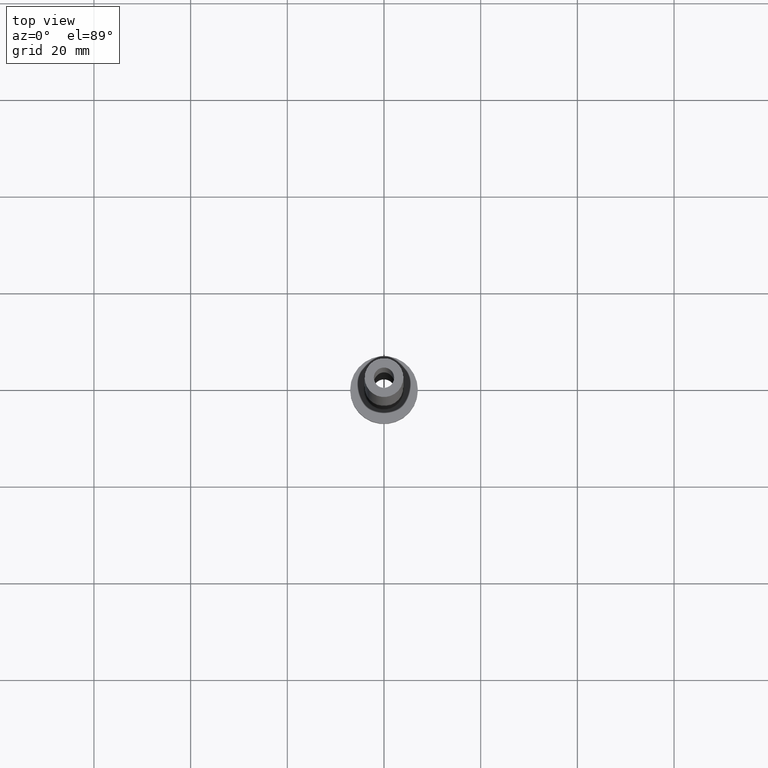
[diagram: clean part render]
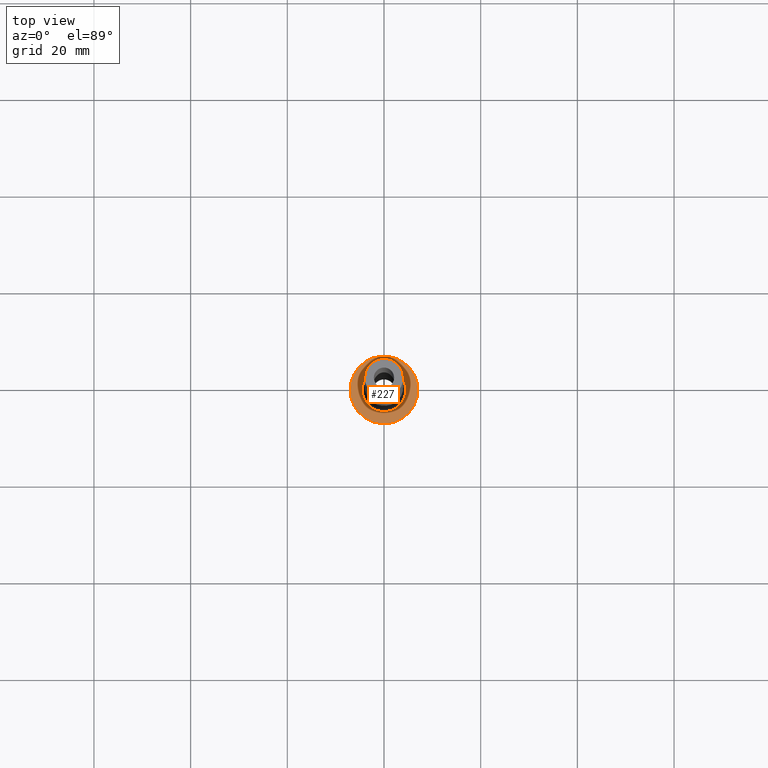
[diagram: same view with one face highlighted and labeled with its STEP entity id]
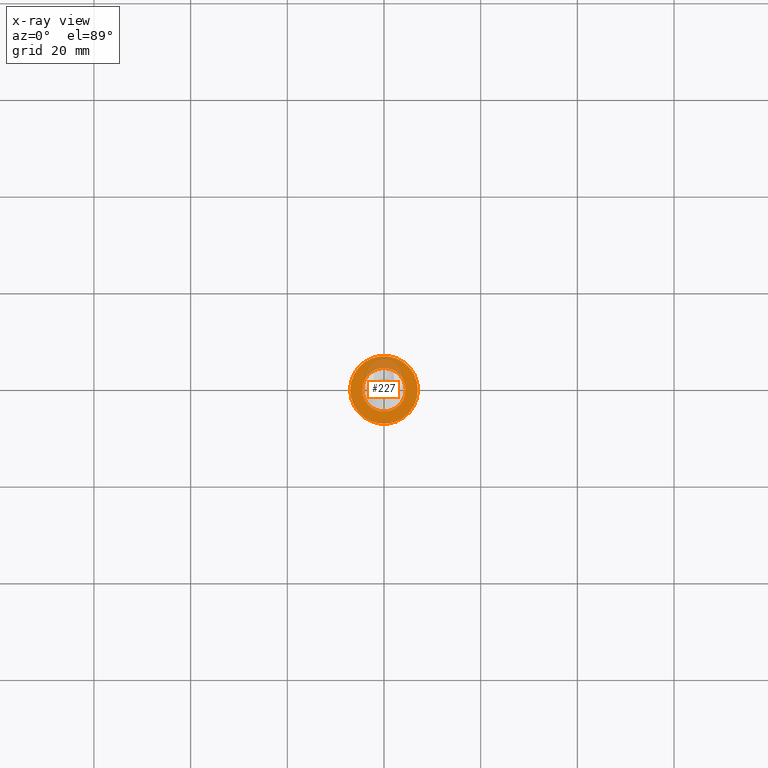
[diagram: x-ray of the same camera — body ghosted, the highlighted face saturated]
A machine part, top view. The second image highlights one B-rep face of the part: STEP entity #227.
The next image is the same camera in x-ray: the body ghosted, the highlighted face saturated — about 17% of this face is hidden behind the body in this view.
In plain terms, the highlighted planar face has unit normal (0, 0, 1).
Its self-contained STEP definition (entity closure, byte-faithful):
#23 = EDGE_CURVE ( 'NONE', #173, #392, #117, .T. ) ;
#28 = CARTESIAN_POINT ( 'NONE',  ( 0.000000000000000000, 0.000000000000000000, 5.000000000000000000 ) ) ;
#39 = AXIS2_PLACEMENT_3D ( 'NONE', #169, #160, #274 ) ;
#44 = CARTESIAN_POINT ( 'NONE',  ( 0.000000000000000000, 0.000000000000000000, 5.000000000000000000 ) ) ;
#64 = FACE_OUTER_BOUND ( 'NONE', #149, .T. ) ;
#66 = DIRECTION ( 'NONE',  ( 1.000000000000000000, 0.000000000000000000, 0.000000000000000000 ) ) ;
#81 = EDGE_LOOP ( 'NONE', ( #105, #362 ) ) ;
#105 = ORIENTED_EDGE ( 'NONE', *, *, #168, .T. ) ;
#106 = CARTESIAN_POINT ( 'NONE',  ( 4.500000000000000888, 0.000000000000000000, 5.000000000000002665 ) ) ;
#108 = DIRECTION ( 'NONE',  ( -0.000000000000000000, -0.000000000000000000, -1.000000000000000000 ) ) ;
#109 = CARTESIAN_POINT ( 'NONE',  ( 0.000000000000000000, 0.000000000000000000, 5.000000000000000000 ) ) ;
#117 = CIRCLE ( 'NONE', #358, 7.000000000000000000 ) ;
#128 = DIRECTION ( 'NONE',  ( -0.000000000000000000, -0.000000000000000000, -1.000000000000000000 ) ) ;
#149 = EDGE_LOOP ( 'NONE', ( #236, #330 ) ) ;
#160 = DIRECTION ( 'NONE',  ( 0.000000000000000000, 0.000000000000000000, 1.000000000000000000 ) ) ;
#168 = EDGE_CURVE ( 'NONE', #318, #321, #198, .T. ) ;
#169 = CARTESIAN_POINT ( 'NONE',  ( 0.000000000000000000, 0.000000000000000000, 5.000000000000000000 ) ) ;
#170 = AXIS2_PLACEMENT_3D ( 'NONE', #44, #363, #289 ) ;
#173 = VERTEX_POINT ( 'NONE', #271 ) ;
#191 = CIRCLE ( 'NONE', #248, 4.500000000000000888 ) ;
#198 = CIRCLE ( 'NONE', #405, 4.500000000000000888 ) ;
#227 = ADVANCED_FACE ( 'NONE', ( #381, #64 ), #414, .T. ) ;
#236 = ORIENTED_EDGE ( 'NONE', *, *, #23, .T. ) ;
#248 = AXIS2_PLACEMENT_3D ( 'NONE', #281, #108, #286 ) ;
#251 = CARTESIAN_POINT ( 'NONE',  ( 7.000000000000000000, 8.572527594031473190E-16, 5.000000000000000000 ) ) ;
#271 = CARTESIAN_POINT ( 'NONE',  ( -7.000000000000000000, 0.000000000000000000, 5.000000000000000000 ) ) ;
#274 = DIRECTION ( 'NONE',  ( 1.000000000000000000, 0.000000000000000000, -0.000000000000000000 ) ) ;
#276 = EDGE_CURVE ( 'NONE', #392, #173, #366, .T. ) ;
#281 = CARTESIAN_POINT ( 'NONE',  ( 0.000000000000000000, 0.000000000000000000, 5.000000000000000000 ) ) ;
#286 = DIRECTION ( 'NONE',  ( 1.000000000000000000, 0.000000000000000000, 0.000000000000000000 ) ) ;
#289 = DIRECTION ( 'NONE',  ( 1.000000000000000000, 0.000000000000000000, 0.000000000000000000 ) ) ;
#318 = VERTEX_POINT ( 'NONE', #106 ) ;
#321 = VERTEX_POINT ( 'NONE', #352 ) ;
#330 = ORIENTED_EDGE ( 'NONE', *, *, #276, .T. ) ;
#352 = CARTESIAN_POINT ( 'NONE',  ( -4.500000000000000888, 5.510910596163088569E-16, 5.000000000000002665 ) ) ;
#358 = AXIS2_PLACEMENT_3D ( 'NONE', #109, #360, #436 ) ;
#360 = DIRECTION ( 'NONE',  ( 0.000000000000000000, 0.000000000000000000, 1.000000000000000000 ) ) ;
#362 = ORIENTED_EDGE ( 'NONE', *, *, #370, .T. ) ;
#363 = DIRECTION ( 'NONE',  ( 0.000000000000000000, 0.000000000000000000, 1.000000000000000000 ) ) ;
#366 = CIRCLE ( 'NONE', #170, 7.000000000000000000 ) ;
#370 = EDGE_CURVE ( 'NONE', #321, #318, #191, .T. ) ;
#381 = FACE_BOUND ( 'NONE', #81, .T. ) ;
#392 = VERTEX_POINT ( 'NONE', #251 ) ;
#405 = AXIS2_PLACEMENT_3D ( 'NONE', #28, #128, #66 ) ;
#414 = PLANE ( 'NONE',  #39 ) ;
#436 = DIRECTION ( 'NONE',  ( 1.000000000000000000, 0.000000000000000000, 0.000000000000000000 ) ) ;